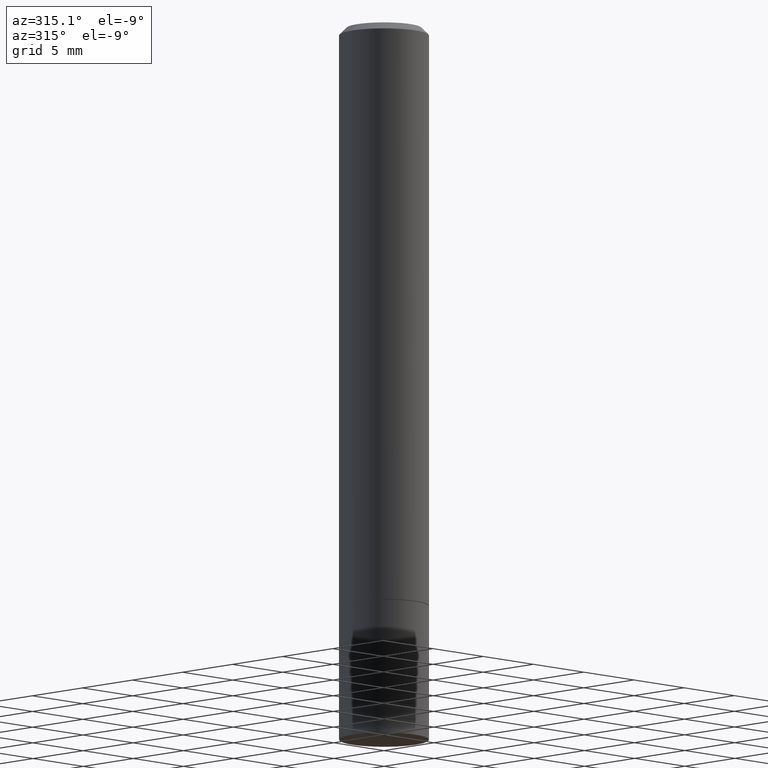
[diagram: clean part render]
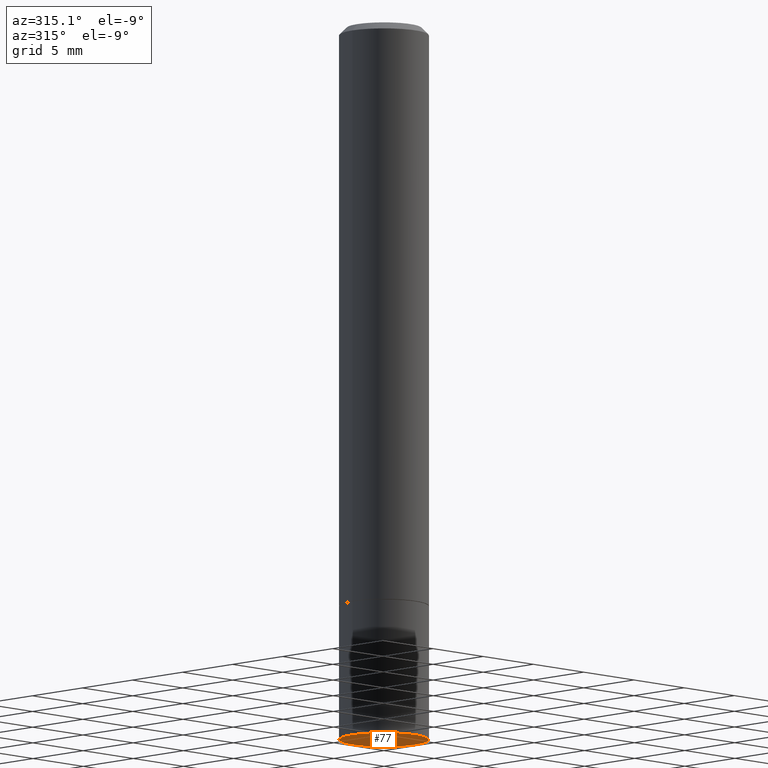
[diagram: same view with one face highlighted and labeled with its STEP entity id]
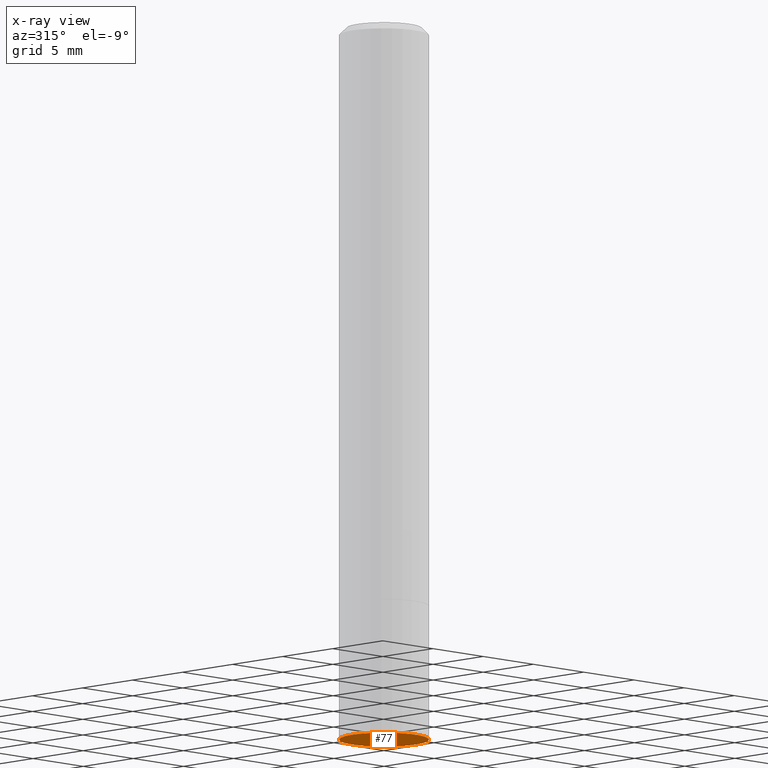
[diagram: x-ray of the same camera — body ghosted, the highlighted face saturated]
A machine part, auxiliary view. The second image highlights one B-rep face of the part: STEP entity #77.
The next image is the same camera in x-ray: the body ghosted, the highlighted face saturated — about 0% of this face is hidden behind the body in this view.
In plain terms, the highlighted planar face has unit normal (0, -0, -1).
Its self-contained STEP definition (entity closure, byte-faithful):
#1 = CARTESIAN_POINT ( 'NONE',  ( 4.890937612370273194E-29, -6.982962677686291165E-15, -2.000000000000000000 ) ) ;
#2 = CIRCLE ( 'NONE', #200, 0.1250000000000000000 ) ;
#50 = FACE_OUTER_BOUND ( 'NONE', #72, .T. ) ;
#72 = EDGE_LOOP ( 'NONE', ( #167, #276 ) ) ;
#77 = ADVANCED_FACE ( 'NONE', ( #50 ), #106, .T. ) ;
#81 = DIRECTION ( 'NONE',  ( 1.000000000000000000, -6.982962677686270655E-15, 0.000000000000000000 ) ) ;
#83 = DIRECTION ( 'NONE',  ( -1.000000000000000000, 6.982962677686265922E-15, -4.876176775795935793E-29 ) ) ;
#102 = EDGE_CURVE ( 'NONE', #343, #213, #2, .T. ) ;
#106 = PLANE ( 'NONE',  #184 ) ;
#109 = DIRECTION ( 'NONE',  ( -2.445468806185136597E-29, 3.491481338843145583E-15, 1.000000000000000000 ) ) ;
#134 = CARTESIAN_POINT ( 'NONE',  ( -0.1250000000000000000, -5.440131506953076851E-15, -2.000000000000000000 ) ) ;
#167 = ORIENTED_EDGE ( 'NONE', *, *, #345, .F. ) ;
#184 = AXIS2_PLACEMENT_3D ( 'NONE', #217, #323, #83 ) ;
#200 = AXIS2_PLACEMENT_3D ( 'NONE', #210, #328, #81 ) ;
#210 = CARTESIAN_POINT ( 'NONE',  ( 4.890937612370273194E-29, -6.982962677686291165E-15, -2.000000000000000000 ) ) ;
#213 = VERTEX_POINT ( 'NONE', #282 ) ;
#217 = CARTESIAN_POINT ( 'NONE',  ( 8.728703347108321496E-16, 0.1249999999999930195, -2.000000000000000444 ) ) ;
#259 = AXIS2_PLACEMENT_3D ( 'NONE', #1, #109, #290 ) ;
#276 = ORIENTED_EDGE ( 'NONE', *, *, #102, .F. ) ;
#282 = CARTESIAN_POINT ( 'NONE',  ( 0.1250000000000000000, -7.855833012397075293E-15, -2.000000000000000000 ) ) ;
#285 = CIRCLE ( 'NONE', #259, 0.1250000000000000000 ) ;
#290 = DIRECTION ( 'NONE',  ( 1.000000000000000000, -6.982962677686270655E-15, 0.000000000000000000 ) ) ;
#323 = DIRECTION ( 'NONE',  ( 2.438088387897960049E-29, -3.491481338843145188E-15, -1.000000000000000000 ) ) ;
#328 = DIRECTION ( 'NONE',  ( -2.445468806185136597E-29, 3.491481338843145583E-15, 1.000000000000000000 ) ) ;
#343 = VERTEX_POINT ( 'NONE', #134 ) ;
#345 = EDGE_CURVE ( 'NONE', #213, #343, #285, .T. ) ;